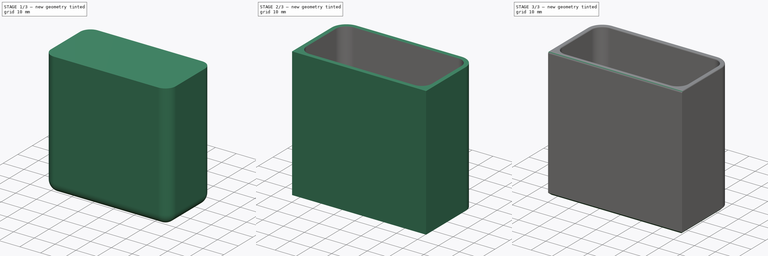
[diagram: build sequence overview — one tinted view per stage of 3, left to right]
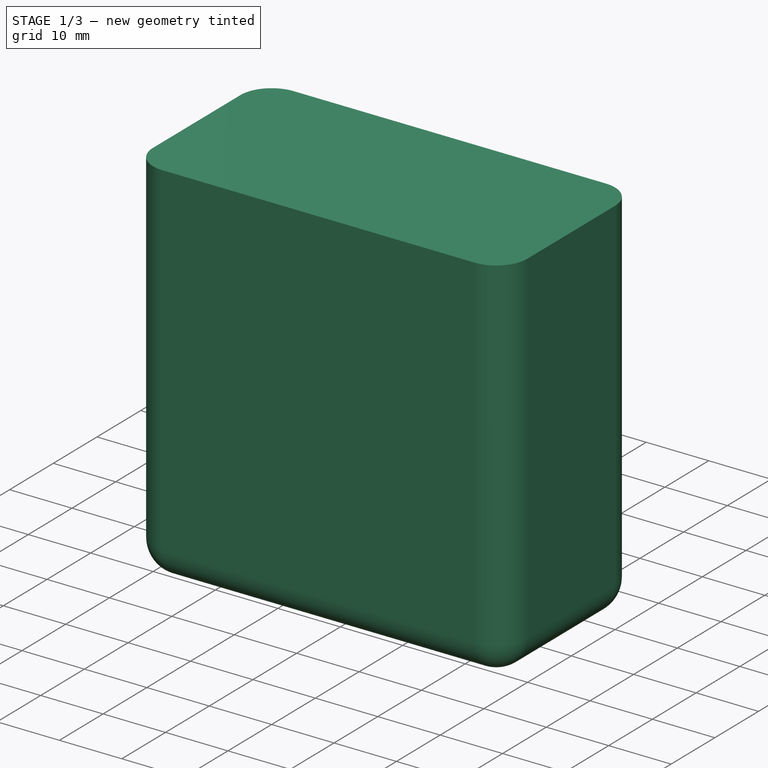
[diagram: stage 1 of 3 — iso view after this stage's code; geometry added in this stage tinted green]
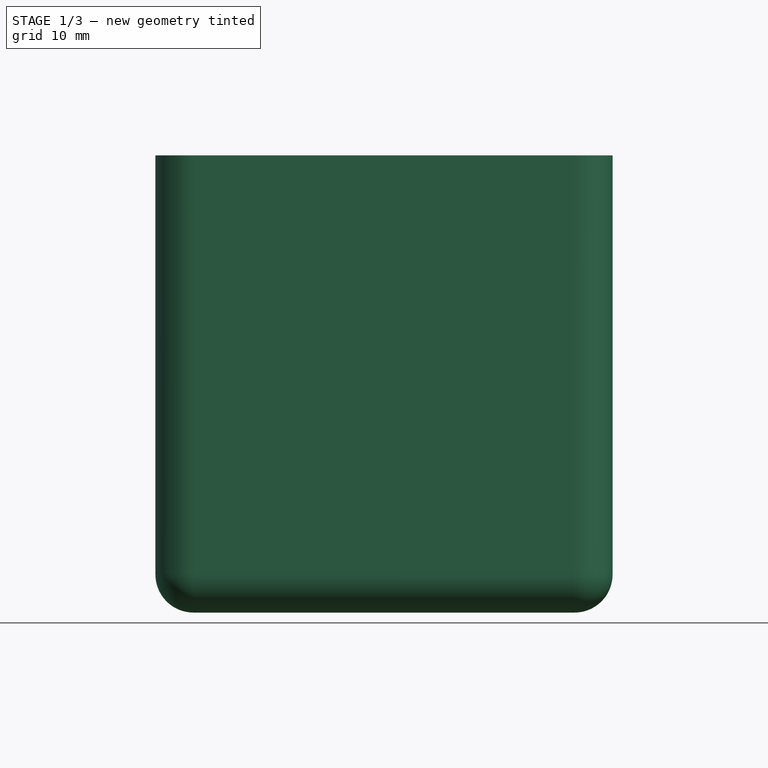
[diagram: stage 1 of 3 — front view after this stage's code; geometry added in this stage tinted green]
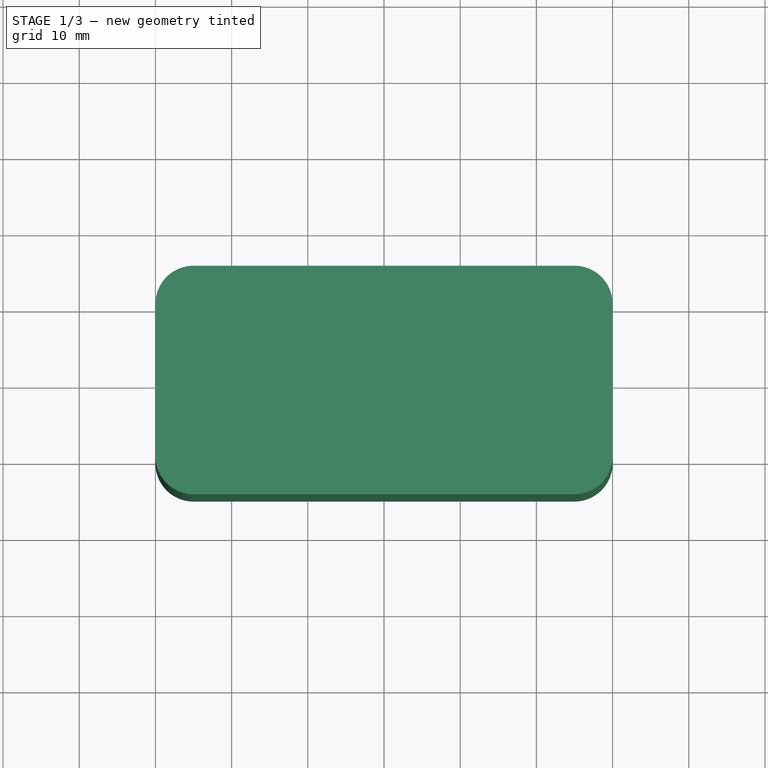
[diagram: stage 1 of 3 — top view after this stage's code; geometry added in this stage tinted green]
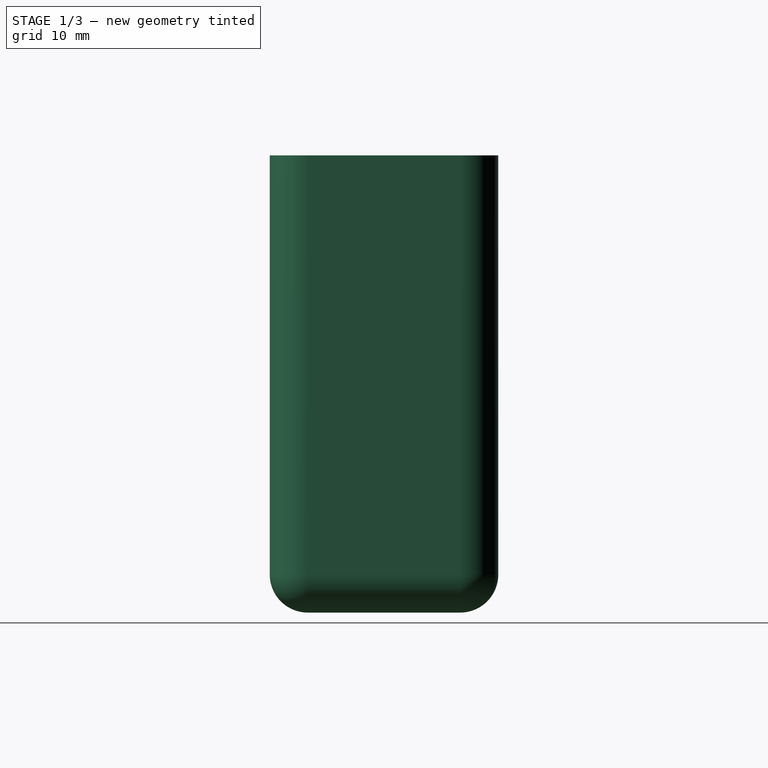
[diagram: stage 1 of 3 — right view after this stage's code; geometry added in this stage tinted green]
FCSTD DOCUMENT  (FreeCAD 0.20R29177 +426 (Git))
Label: TV-remote-Holder
License: All rights reserved
LicenseURL: http://en.wikipedia.org/wiki/All_rights_reserved
objects: Sketcher::SketchObject×2, PartDesign::Pad×2, PartDesign::Body×2, Spreadsheet::Sheet×1, PartDesign::Fillet×1, PartDesign::SubShapeBinder×1, Part::Cut×1, Part::Fillet×1, Part::Chamfer×1, App::Part×1
note: 14 computed .brp shape members not serialized (recipe doc carries the construction recipe); baked Part::Feature solids carry a one-line shape summary decoded from their .brp

FEATURE [Sketcher::SketchObject] Sketch
  FullyConstrained = true
  MapMode = 5
  Support = -> [XY_Plane]
  expr: Constraints[23] = <<PARAMETERS>>.inner_depth
  expr: Constraints[24] = <<PARAMETERS>>.inner_width
  sketch-geometry (12):
    g0: ArcOfCircle CenterX=-25 CenterY=10 CenterZ=0 NormalX=0 NormalY=0 NormalZ=1 AngleXU=0 Radius=5 StartAngle=1.5708 EndAngle=3.14159
    g1: ArcOfCircle CenterX=25 CenterY=10 CenterZ=0 NormalX=0 NormalY=0 NormalZ=1 AngleXU=0 Radius=5 StartAngle=-1.8e-15 EndAngle=1.5708
    g2: ArcOfCircle CenterX=25 CenterY=-10 CenterZ=0 NormalX=0 NormalY=0 NormalZ=1 AngleXU=0 Radius=5 StartAngle=4.71239 EndAngle=6.28319
    g3: ArcOfCircle CenterX=-25 CenterY=-10 CenterZ=0 NormalX=0 NormalY=0 NormalZ=1 AngleXU=0 Radius=5 StartAngle=3.14159 EndAngle=4.71239
    g4: LineSegment StartX=-30 StartY=-10 StartZ=0 EndX=-30 EndY=10 EndZ=0
    g5: LineSegment StartX=-25 StartY=15 StartZ=0 EndX=25 EndY=15 EndZ=0
    g6: LineSegment StartX=30 StartY=10 StartZ=0 EndX=30 EndY=-10 EndZ=0
    g7: LineSegment StartX=25 StartY=-15 StartZ=0 EndX=-25 EndY=-15 EndZ=0
    g8: LineSegment StartX=-25 StartY=15 StartZ=0 EndX=25 EndY=-15 EndZ=0
    g9: LineSegment StartX=25 StartY=15 StartZ=0 EndX=-25 EndY=-15 EndZ=0
    g10: GeomPoint X=0 Y=0 Z=0
    g11: GeomPoint X=0 Y=0 Z=0
  constraints (26):
    c: Horizontal(g5)
    c: Horizontal(g7)
    c: Tangent(g7,g3) = 1.5708
    c: Tangent(g7,g2) = 1.5708
    c: Tangent(g6,g2) = 1.5708
    c: Tangent(g6,g1) = 1.5708
    c: Tangent(g5,g1) = 1.5708
    c: Tangent(g5,g0) = 1.5708
    c: Tangent(g4,g0) = 1.5708
    c: Tangent(g4,g3) = 1.5708
    c: Vertical(g6)
    c: Vertical(g4)
    c: Equal(g5,g7)
    c: Equal(g6,g4)
    c: Coincident(g8,g0)
    c: Coincident(g8,g2)
    c: Coincident(g9,g1)
    c: Coincident(g9,g3)
    c: PointOnObject(g10,g9)
    c: PointOnObject(g11,g8)
    c: Coincident(g11,g10)
    c: Coincident(g11,g-1)
    c: Equal(g9,g8)
    c: Distance(g1,g7) = 30
    c: Distance(g0,g6) = 60
    c: Radius(g1) = 5
FEATURE [Spreadsheet::Sheet] Spreadsheet  label="PARAMETERS"
  cells = B2=inner; C2=unit; D2=outer; E2=unit; A3=height:; B3(inner_height)=60; C3=mm; A4=width:; B4(inner_width)=60; C4=mm; A5=depth:; B5(inner_depth)=30; C5=mm; A8=thickness; B8(thicknes)=2
FEATURE [PartDesign::Pad] Pad
  Direction = (0,0,1)
  Length = 60
  Length2 = 10
  Profile = -> Sketch
  ReferenceAxis = -> Sketch [N_Axis]
  Reversed = true
  Type = 0
  expr: Length = <<PARAMETERS>>.inner_height
FEATURE [PartDesign::Fillet] Fillet
  Base = -> Pad [Face10]
  BaseFeature = -> Pad
  Radius = 5
  SupportTransform = false
  UseAllEdges = false
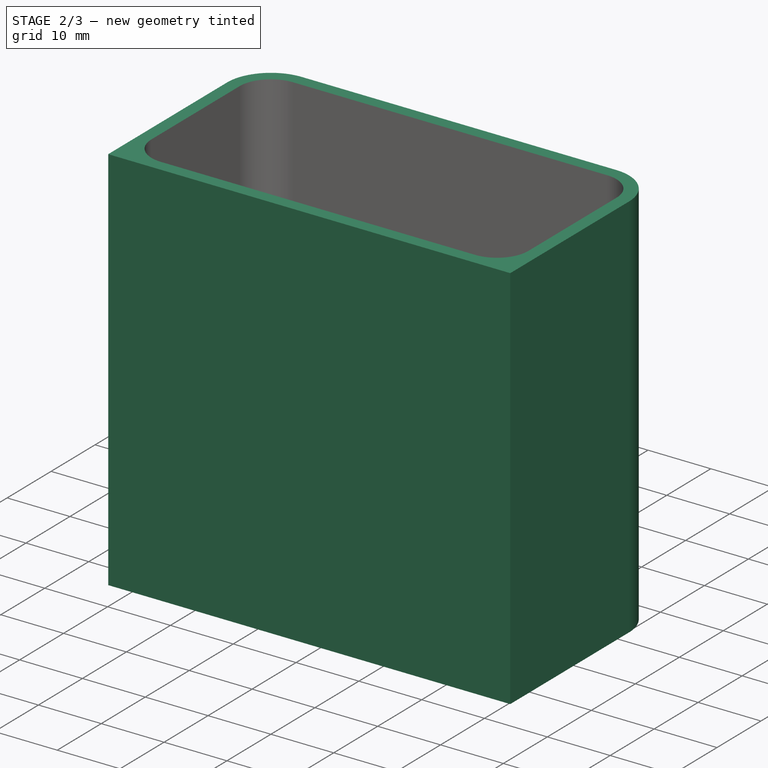
[diagram: stage 2 of 3 — iso view after this stage's code; geometry added in this stage tinted green]
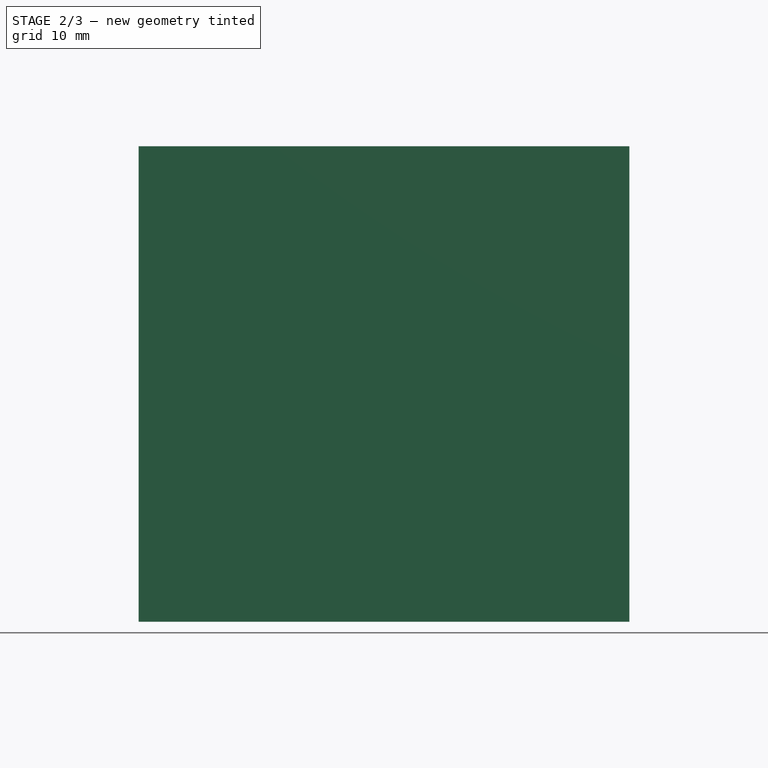
[diagram: stage 2 of 3 — front view after this stage's code; geometry added in this stage tinted green]
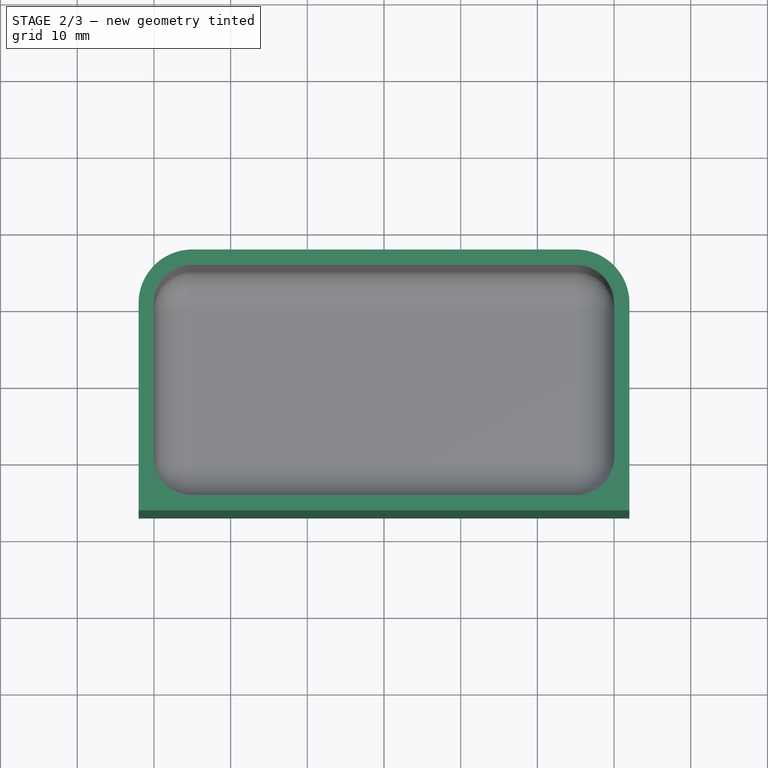
[diagram: stage 2 of 3 — top view after this stage's code; geometry added in this stage tinted green]
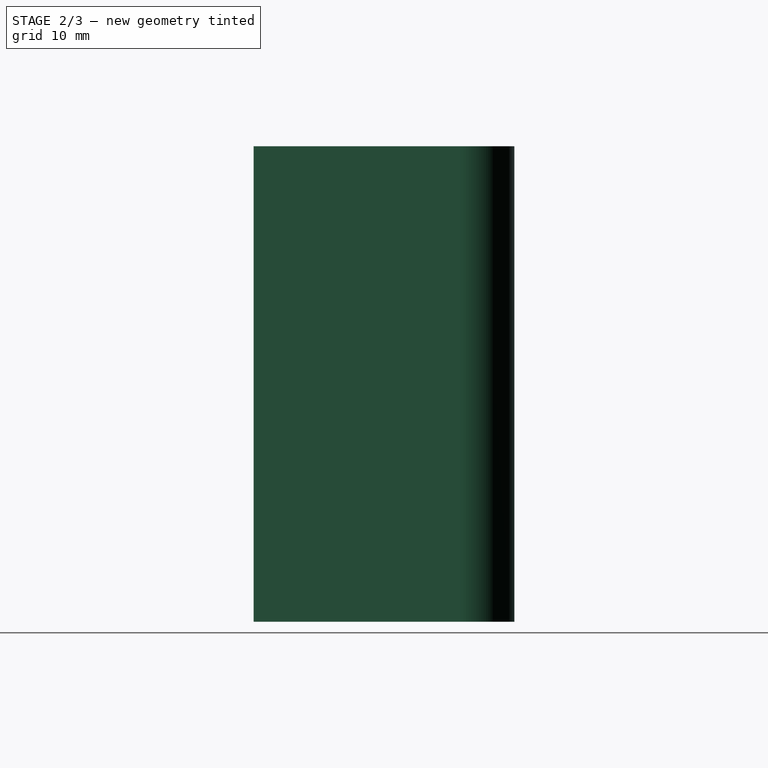
[diagram: stage 2 of 3 — right view after this stage's code; geometry added in this stage tinted green]
FEATURE [PartDesign::Body] Body  label="negative-space"
  Group = -> [Sketch,Pad,Fillet]
  Origin = -> Origin
  Tip = -> Fillet
FEATURE [PartDesign::SubShapeBinder] Binder
  BindCopyOnChange = 0
  BindMode = 0
  ClaimChildren = false
  Context = -> Body001 [Binder.]
  Fuse = false
  MakeFace = true
  OffsetFill = false
  OffsetIntersection = false
  OffsetJoinType = 0
  OffsetOpenResult = false
  PartialLoad = false
  Relative = true
  Support = -> [Body]
  _Version = 2
FEATURE [Sketcher::SketchObject] Sketch001
  ExternalGeometry = -> [Binder]
  FullyConstrained = true
  MapMode = 5
  Support = -> [XY_Plane001]
  expr: Constraints[16] = <<PARAMETERS>>.thicknes
  expr: Constraints[17] = <<PARAMETERS>>.thicknes
  sketch-geometry (9):
    g0: LineSegment StartX=32 StartY=-17 StartZ=0 EndX=32 EndY=10 EndZ=0
    g1: LineSegment StartX=25 StartY=17 StartZ=0 EndX=-25 EndY=17 EndZ=0
    g2: LineSegment StartX=-32 StartY=10 StartZ=0 EndX=-32 EndY=-17 EndZ=0
    g3: LineSegment StartX=-32 StartY=-17 StartZ=0 EndX=32 EndY=-17 EndZ=0
    g4: GeomPoint X=0 Y=0 Z=0
    g5: ArcOfCircle CenterX=-25 CenterY=10 CenterZ=0 NormalX=0 NormalY=0 NormalZ=1 AngleXU=0 Radius=7 StartAngle=1.5708 EndAngle=3.14159
    g6: GeomPoint X=-32 Y=17 Z=0
    g7: ArcOfCircle CenterX=25 CenterY=10 CenterZ=0 NormalX=0 NormalY=0 NormalZ=1 AngleXU=0 Radius=7 StartAngle=1e-16 EndAngle=1.5708
    g8: GeomPoint X=32 Y=17 Z=0
  constraints (21):
    c: Coincident(g2,g3)
    c: Coincident(g3,g0)
    c: Horizontal(g1)
    c: Horizontal(g3)
    c: Vertical(g0)
    c: Vertical(g2)
    c: Symmetric(g6,g0,g4)
    c: Coincident(g4,g-1)
    c: PointOnObject(g6,g1)
    c: PointOnObject(g6,g2)
    c: Tangent(g1,g5) = -1.5708
    c: Tangent(g2,g5) = -1.5708
    c: PointOnObject(g8,g0)
    c: PointOnObject(g8,g1)
    c: Tangent(g0,g7) = -1.5708
    c: Tangent(g1,g7) = -1.5708
    c: Distance(g-5,g1) = 2
    c: Distance(g-4,g2) = 2
    c: Equal(g5,g7)
    c: Vertical(g1,g-5)
    c: Radius(g7) = 7
FEATURE [PartDesign::Pad] Pad001
  Direction = (0,0,1)
  Length = 62
  Length2 = 10
  Profile = -> Sketch001
  ReferenceAxis = -> Sketch001 [N_Axis]
  Reversed = true
  Type = 0
  expr: Length = <<PARAMETERS>>.inner_height + 1 * <<PARAMETERS>>.thicknes
FEATURE [PartDesign::Body] Body001  label="TV-remote-Holder"
  Group = -> [Binder,Sketch001,Pad001]
  Origin = -> Origin001
  Tip = -> Pad001
FEATURE [Part::Cut] Cut
  Base = -> Body001
  Tool = -> Body
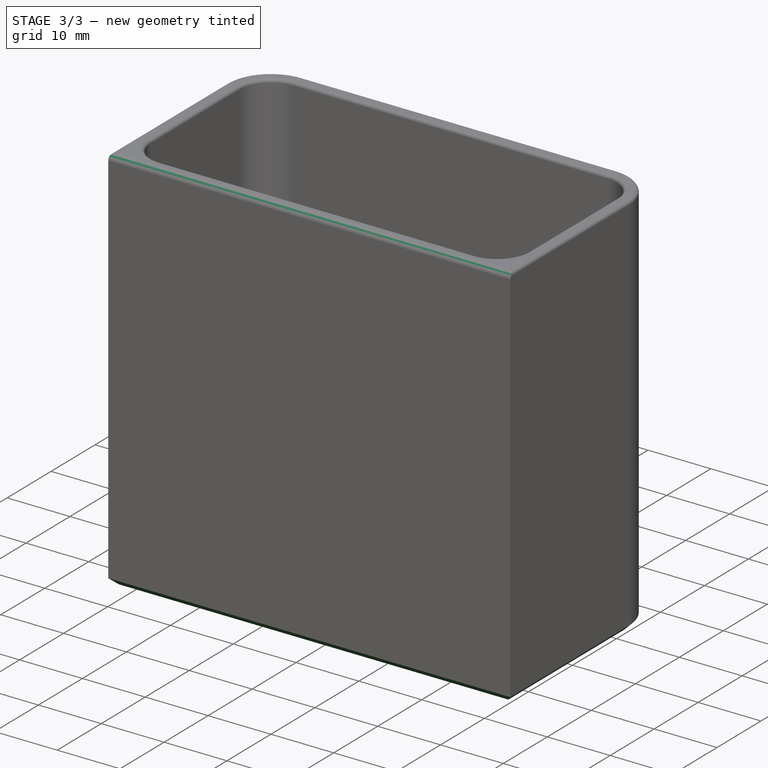
[diagram: stage 3 of 3 — iso view after this stage's code; geometry added in this stage tinted green]
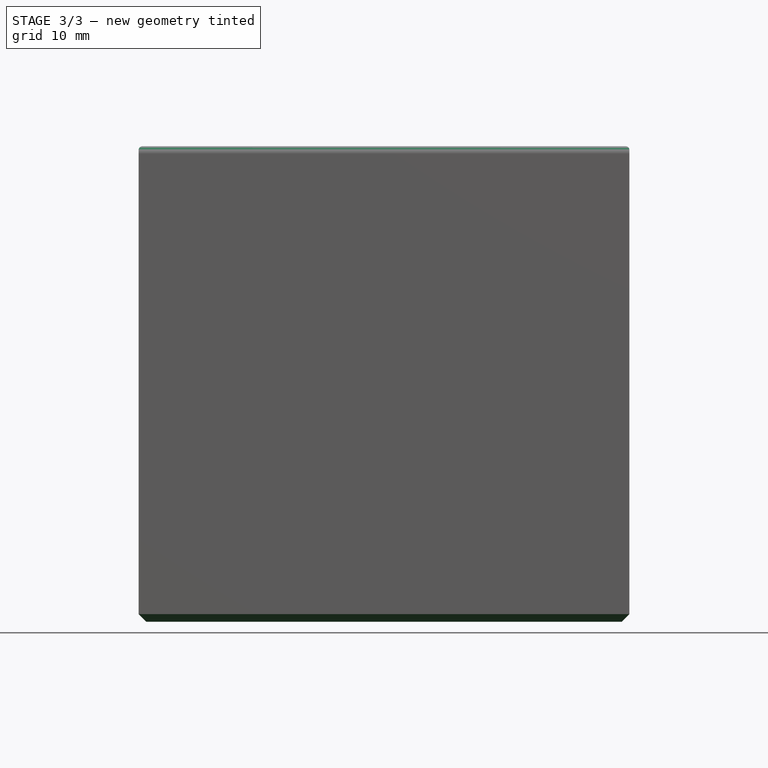
[diagram: stage 3 of 3 — front view after this stage's code; geometry added in this stage tinted green]
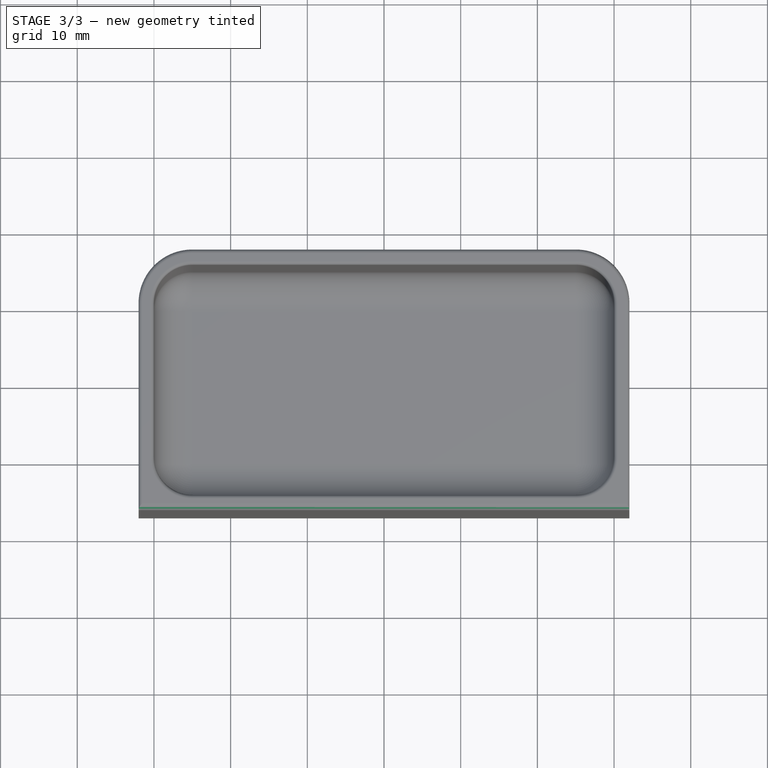
[diagram: stage 3 of 3 — top view after this stage's code; geometry added in this stage tinted green]
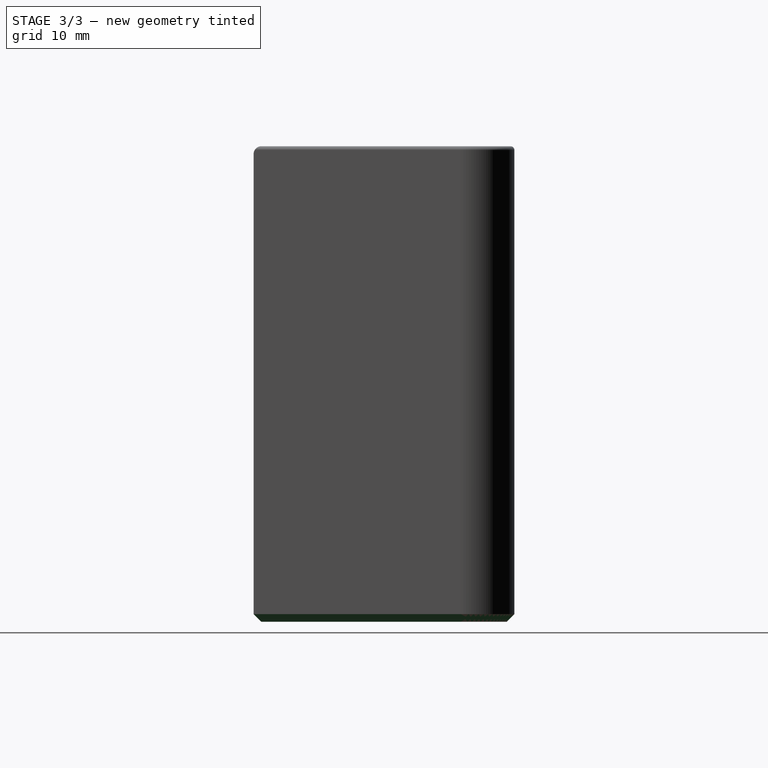
[diagram: stage 3 of 3 — right view after this stage's code; geometry added in this stage tinted green]
FEATURE [Part::Fillet] Fillet002
  Base = -> Cut
  Edges = 13 edges: [Edge3 r=0.5,Edge6 r=1,Edge11 r=0.5,Edge12 r=0.5,Edge13 r=0.5,Edge14 r=0.5,Edge15 r=0.5,Edge16 r=0.5,Edge17 r=0.5,Edge18 r=0.5,Edge19 r=0.5,Edge20 r=0.5,Edge21 r=0.5]
FEATURE [Part::Chamfer] Chamfer
  Base = -> Fillet002
  Edges = 6 edges r=1: [Edge2,Edge7,Edge13,Edge14,Edge15,Edge16]
FEATURE [App::Part] Part  label="Tv-remote-Holder"
  Group = -> [Spreadsheet,Cut,Body,Fillet002,Body001,Chamfer]
  Origin = -> Origin002
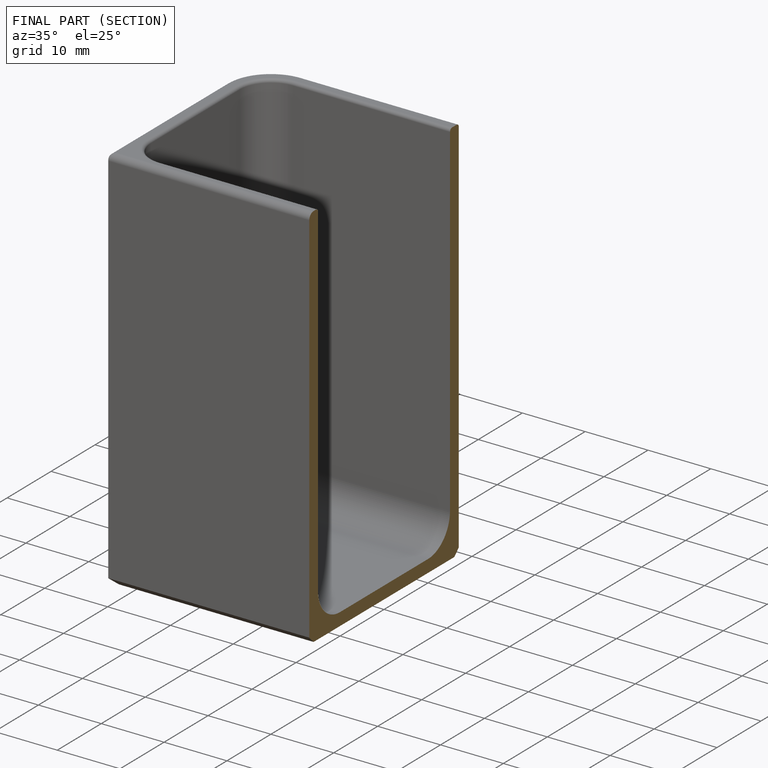
[diagram: finished part — half-section view (interior)]
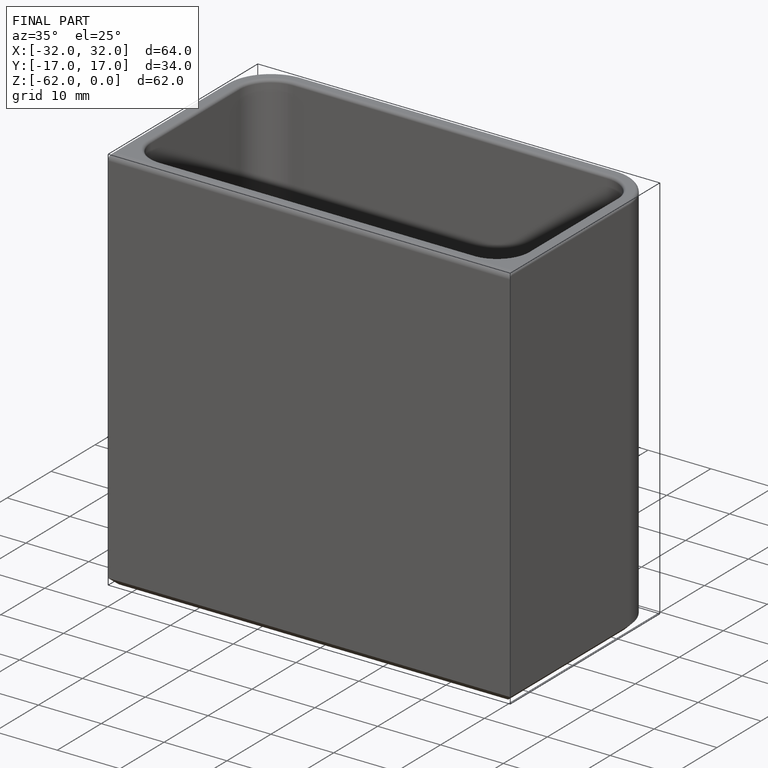
[diagram: finished part — iso view with bounding-box wireframe]
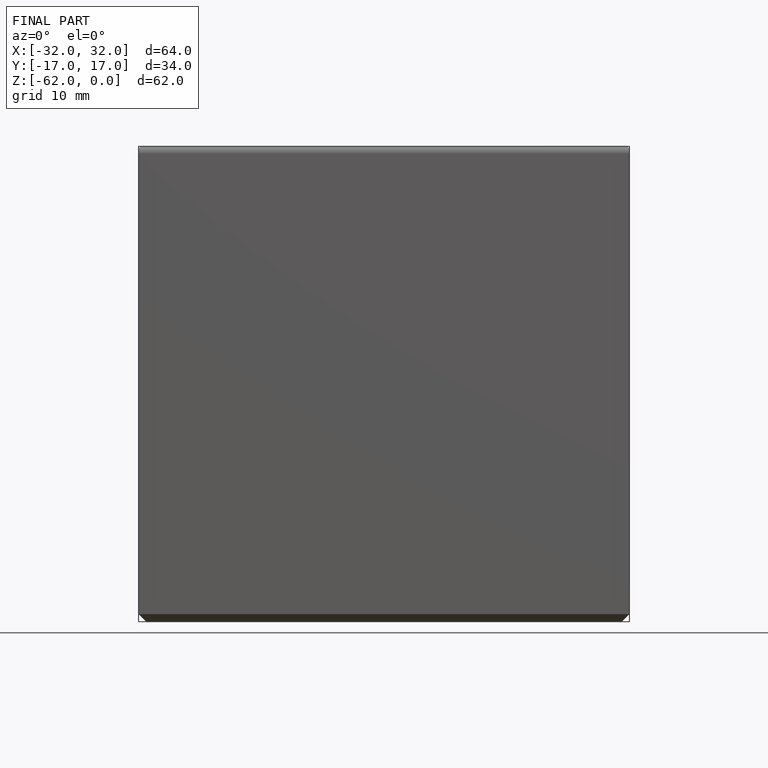
[diagram: finished part — front view with bounding-box wireframe]
